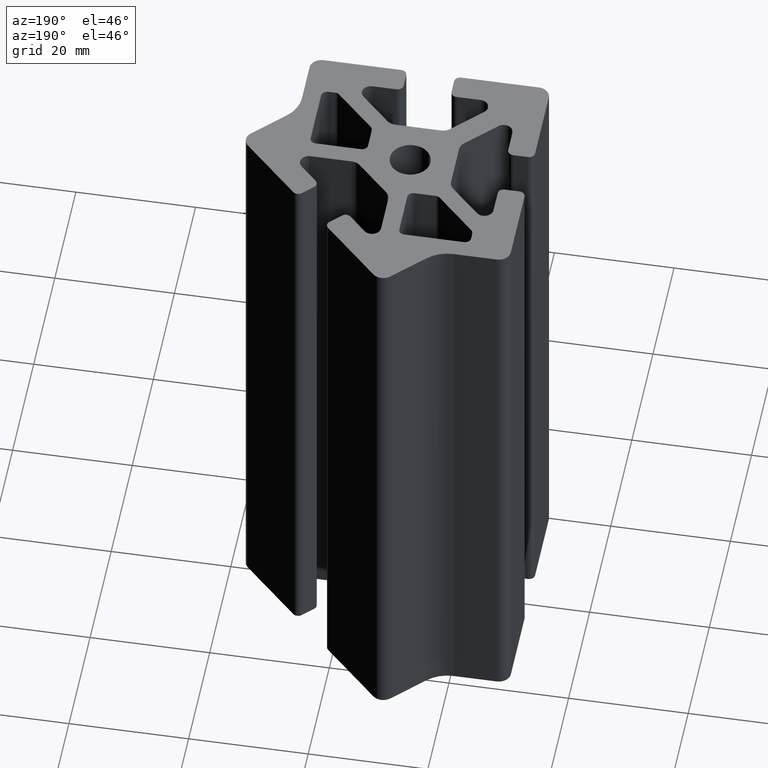
[diagram: clean part render]
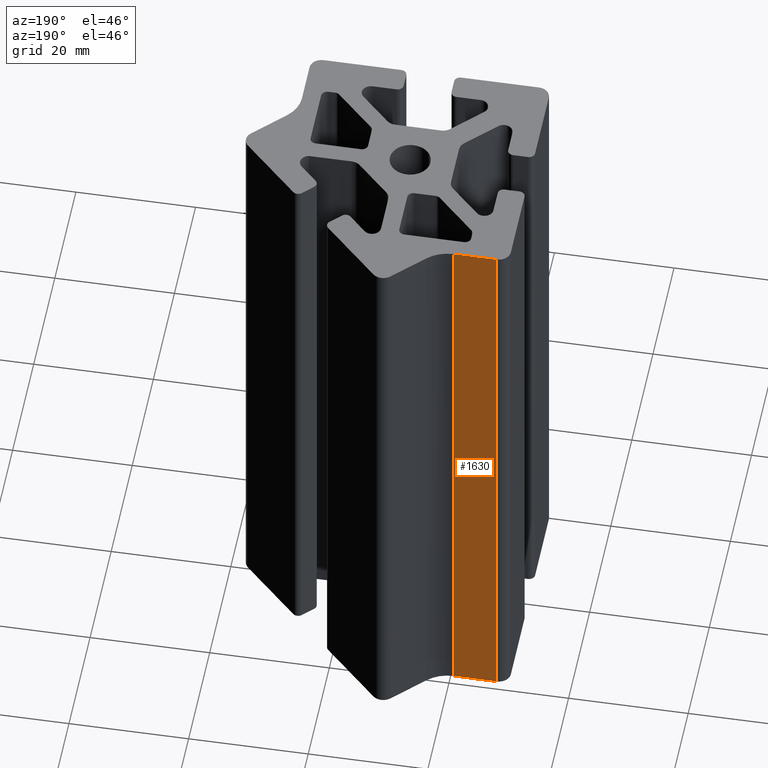
[diagram: same view with one face highlighted and labeled with its STEP entity id]
A machine part, auxiliary view. The second image highlights one B-rep face of the part: STEP entity #1630.
In plain terms, the highlighted planar face has unit normal (0, 1, 0).
Its self-contained STEP definition (entity closure, byte-faithful):
#152=FACE_OUTER_BOUND('',#238,.T.);
#238=EDGE_LOOP('',(#1096,#1097,#1098,#1099));
#335=LINE('',#2419,#502);
#336=LINE('',#2423,#503);
#337=LINE('',#2425,#504);
#338=LINE('',#2426,#505);
#502=VECTOR('',#1908,100.);
#503=VECTOR('',#1913,7.23043902910102);
#504=VECTOR('',#1914,100.);
#505=VECTOR('',#1915,7.23043902910102);
#669=VERTEX_POINT('',#2416);
#670=VERTEX_POINT('',#2418);
#671=VERTEX_POINT('',#2422);
#672=VERTEX_POINT('',#2424);
#840=EDGE_CURVE('',#669,#670,#335,.T.);
#842=EDGE_CURVE('',#669,#671,#336,.T.);
#843=EDGE_CURVE('',#671,#672,#337,.T.);
#844=EDGE_CURVE('',#670,#672,#338,.T.);
#1096=ORIENTED_EDGE('',*,*,#842,.T.);
#1097=ORIENTED_EDGE('',*,*,#843,.T.);
#1098=ORIENTED_EDGE('',*,*,#844,.F.);
#1099=ORIENTED_EDGE('',*,*,#840,.F.);
#1584=PLANE('',#1722);
#1630=ADVANCED_FACE('',(#152),#1584,.T.);
#1722=AXIS2_PLACEMENT_3D('',#2421,#1911,#1912);
#1908=DIRECTION('',(0.,0.,1.));
#1911=DIRECTION('center_axis',(5.28321997E-7,0.99999999999986,0.));
#1912=DIRECTION('ref_axis',(0.,0.,1.));
#1913=DIRECTION('',(-0.99999999999986,5.28321996748337E-7,0.));
#1914=DIRECTION('',(0.,0.,1.));
#1915=DIRECTION('',(-0.99999999999986,5.28321996748337E-7,0.));
#2416=CARTESIAN_POINT('',(39.2304951191386,19.9999485500056,0.));
#2418=CARTESIAN_POINT('',(39.2304951191386,19.9999485500056,100.));
#2419=CARTESIAN_POINT('',(39.2304951191386,19.9999485500056,0.));
#2421=CARTESIAN_POINT('Origin',(39.2304951191386,19.9999485500056,0.));
#2422=CARTESIAN_POINT('',(32.0000560900386,19.9999523700056,0.));
#2423=CARTESIAN_POINT('',(39.2304951191386,19.9999485500056,0.));
#2424=CARTESIAN_POINT('',(32.0000560900386,19.9999523700056,100.));
#2425=CARTESIAN_POINT('',(32.0000560900386,19.9999523700056,0.));
#2426=CARTESIAN_POINT('',(39.2304951191386,19.9999485500056,100.));